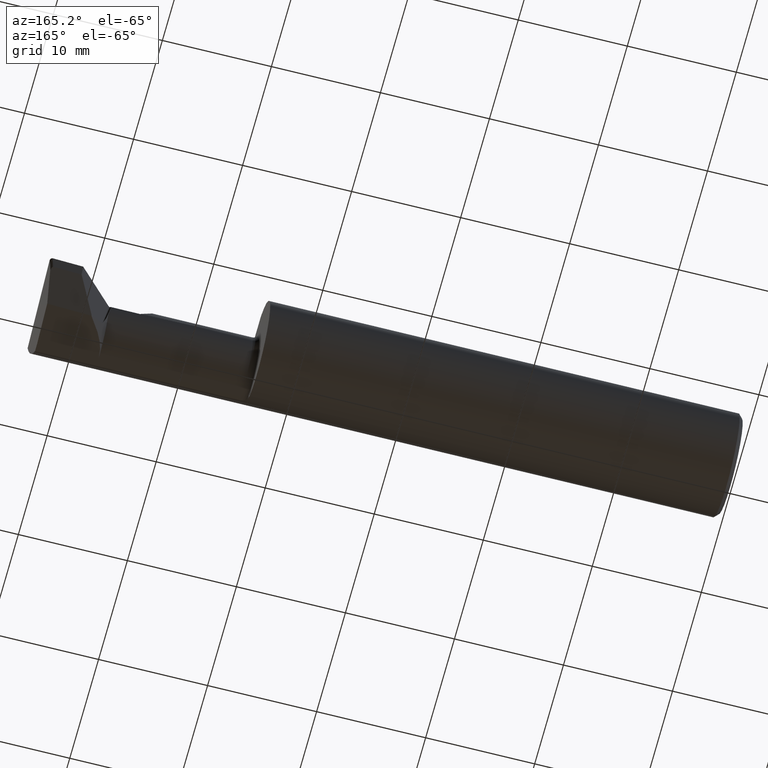
[diagram: clean part render]
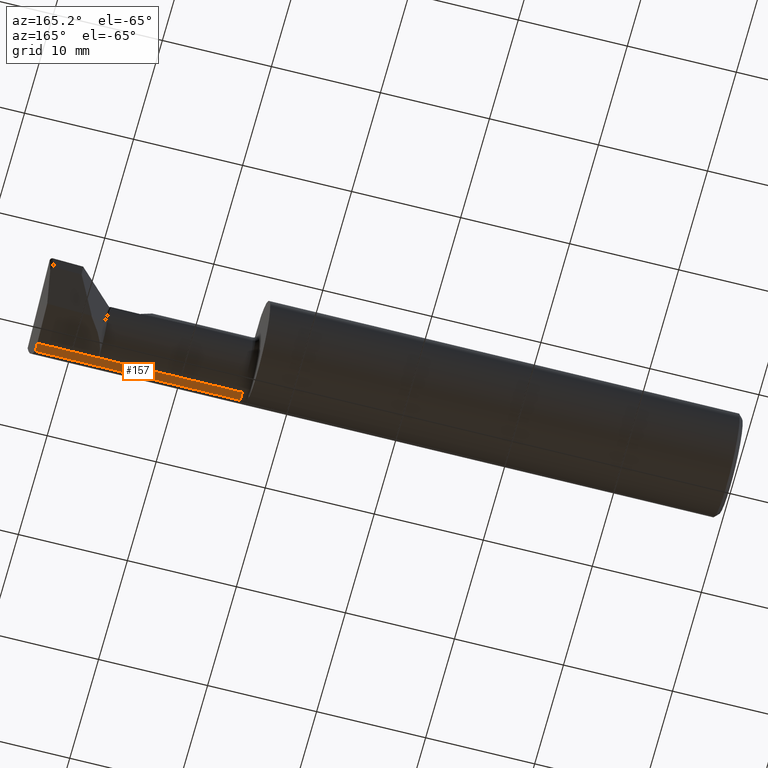
[diagram: same view with one face highlighted and labeled with its STEP entity id]
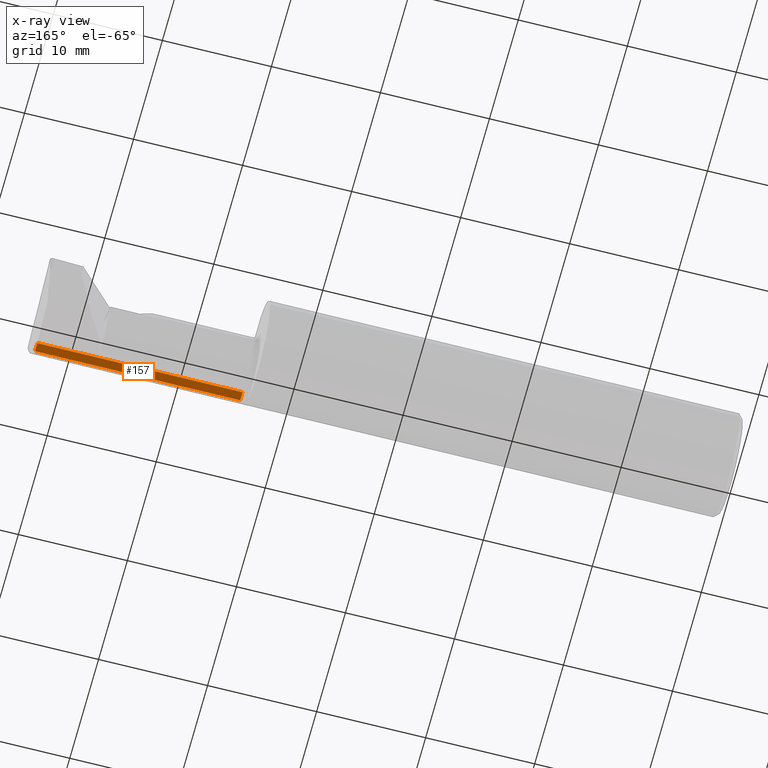
[diagram: x-ray of the same camera — body ghosted, the highlighted face saturated]
A machine part, auxiliary view. The second image highlights one B-rep face of the part: STEP entity #157.
The next image is the same camera in x-ray: the body ghosted, the highlighted face saturated — about 0% of this face is hidden behind the body in this view.
In plain terms, the highlighted cylindrical surface (partial cylindrical patch) has radius 3.5052 mm, axis along (-1, -0, -0).
Its self-contained STEP definition (entity closure, byte-faithful):
#5 = CIRCLE ( 'NONE', #195, 0.1380000000000000115 ) ;
#35 = DIRECTION ( 'NONE',  ( 0.000000000000000000, 0.000000000000000000, 1.000000000000000000 ) ) ;
#65 = CARTESIAN_POINT ( 'NONE',  ( 1.982095246169503167, -0.1311404468412942781, -0.1337991244450638106 ) ) ;
#71 = VECTOR ( 'NONE', #536, 39.37007874015748143 ) ;
#84 = CARTESIAN_POINT ( 'NONE',  ( 2.499929687538754219, -0.09734999999999999210, -0.1380000000000000115 ) ) ;
#93 = CARTESIAN_POINT ( 'NONE',  ( 1.734999999999999876, -0.09734999999999999210, 0.000000000000000000 ) ) ;
#130 = DIRECTION ( 'NONE',  ( -1.000000000000000000, -0.000000000000000000, -0.000000000000000000 ) ) ;
#147 = ORIENTED_EDGE ( 'NONE', *, *, #781, .T. ) ;
#157 = ADVANCED_FACE ( 'NONE', ( #236 ), #773, .T. ) ;
#166 = EDGE_LOOP ( 'NONE', ( #394, #423, #766, #147, #786 ) ) ;
#177 = EDGE_CURVE ( 'NONE', #676, #685, #5, .T. ) ;
#188 = CARTESIAN_POINT ( 'NONE',  ( 2.475364900949933222, -0.1200794343651744034, -0.1365925399897124637 ) ) ;
#195 = AXIS2_PLACEMENT_3D ( 'NONE', #93, #638, #778 ) ;
#236 = FACE_OUTER_BOUND ( 'NONE', #166, .T. ) ;
#330 = DIRECTION ( 'NONE',  ( -1.000000000000000000, -0.000000000000000000, -0.000000000000000000 ) ) ;
#343 = EDGE_CURVE ( 'NONE', #366, #616, #528, .T. ) ;
#366 = VERTEX_POINT ( 'NONE', #755 ) ;
#394 = ORIENTED_EDGE ( 'NONE', *, *, #717, .F. ) ;
#395 = CARTESIAN_POINT ( 'NONE',  ( 1.734999999999999876, -0.09734999999999996434, -0.1380000000000000115 ) ) ;
#401 = CARTESIAN_POINT ( 'NONE',  ( 2.475270114064585414, -0.1311404468412942226, -0.1337991244450638939 ) ) ;
#423 = ORIENTED_EDGE ( 'NONE', *, *, #614, .F. ) ;
#431 = VERTEX_POINT ( 'NONE', #839 ) ;
#436 = LINE ( 'NONE', #84, #71 ) ;
#504 = VECTOR ( 'NONE', #130, 39.37007874015748143 ) ;
#528 =( BOUNDED_CURVE ( )  B_SPLINE_CURVE ( 3, ( #401, #188, #619, #898 ),
 .UNSPECIFIED., .F., .T. ) 
 B_SPLINE_CURVE_WITH_KNOTS ( ( 4, 4 ),
 ( 0.07504799566654110632, 0.3224215473366536244 ),
 .UNSPECIFIED. ) 
 CURVE ( )  GEOMETRIC_REPRESENTATION_ITEM ( )  RATIONAL_B_SPLINE_CURVE ( ( 1.000000000000000000, 0.9949070250026432749, 0.9949070250026432749, 1.000000000000000000 ) ) 
 REPRESENTATION_ITEM ( '' )  );
#536 = DIRECTION ( 'NONE',  ( -1.000000000000000000, -0.000000000000000000, -0.000000000000000000 ) ) ;
#553 = LINE ( 'NONE', #65, #504 ) ;
#613 = CARTESIAN_POINT ( 'NONE',  ( 1.734999999999999876, -0.1311404468412942781, -0.1337991244450638106 ) ) ;
#614 = EDGE_CURVE ( 'NONE', #616, #431, #436, .T. ) ;
#616 = VERTEX_POINT ( 'NONE', #883 ) ;
#619 = CARTESIAN_POINT ( 'NONE',  ( 2.475614491541420659, -0.1087582937988974263, -0.1380000000000000115 ) ) ;
#638 = DIRECTION ( 'NONE',  ( 1.000000000000000000, 0.000000000000000000, 0.000000000000000000 ) ) ;
#658 = DIRECTION ( 'NONE',  ( -1.000000000000000000, -0.000000000000000000, -0.000000000000000000 ) ) ;
#676 = VERTEX_POINT ( 'NONE', #613 ) ;
#678 = CARTESIAN_POINT ( 'NONE',  ( 1.709999999999999964, -0.09734999999999996434, -0.1380000000000000115 ) ) ;
#685 = VERTEX_POINT ( 'NONE', #395 ) ;
#717 = EDGE_CURVE ( 'NONE', #431, #685, #890, .T. ) ;
#718 = VECTOR ( 'NONE', #330, 39.37007874015748143 ) ;
#755 = CARTESIAN_POINT ( 'NONE',  ( 2.475270114064585414, -0.1311404468412942226, -0.1337991244450638939 ) ) ;
#766 = ORIENTED_EDGE ( 'NONE', *, *, #343, .F. ) ;
#773 = CYLINDRICAL_SURFACE ( 'NONE', #792, 0.1380000000000000115 ) ;
#778 = DIRECTION ( 'NONE',  ( 0.000000000000000000, 0.000000000000000000, -1.000000000000000000 ) ) ;
#781 = EDGE_CURVE ( 'NONE', #366, #676, #553, .T. ) ;
#786 = ORIENTED_EDGE ( 'NONE', *, *, #177, .T. ) ;
#792 = AXIS2_PLACEMENT_3D ( 'NONE', #847, #658, #35 ) ;
#839 = CARTESIAN_POINT ( 'NONE',  ( 2.254190492339006813, -0.09734999999999999210, -0.1380000000000000115 ) ) ;
#847 = CARTESIAN_POINT ( 'NONE',  ( 1.709999999999999964, -0.09734999999999999210, 0.000000000000000000 ) ) ;
#883 = CARTESIAN_POINT ( 'NONE',  ( 2.476015072363122016, -0.09734999999999995046, -0.1380000000000000115 ) ) ;
#890 = LINE ( 'NONE', #678, #718 ) ;
#898 = CARTESIAN_POINT ( 'NONE',  ( 2.476015072363122016, -0.09734999999999995046, -0.1380000000000000115 ) ) ;